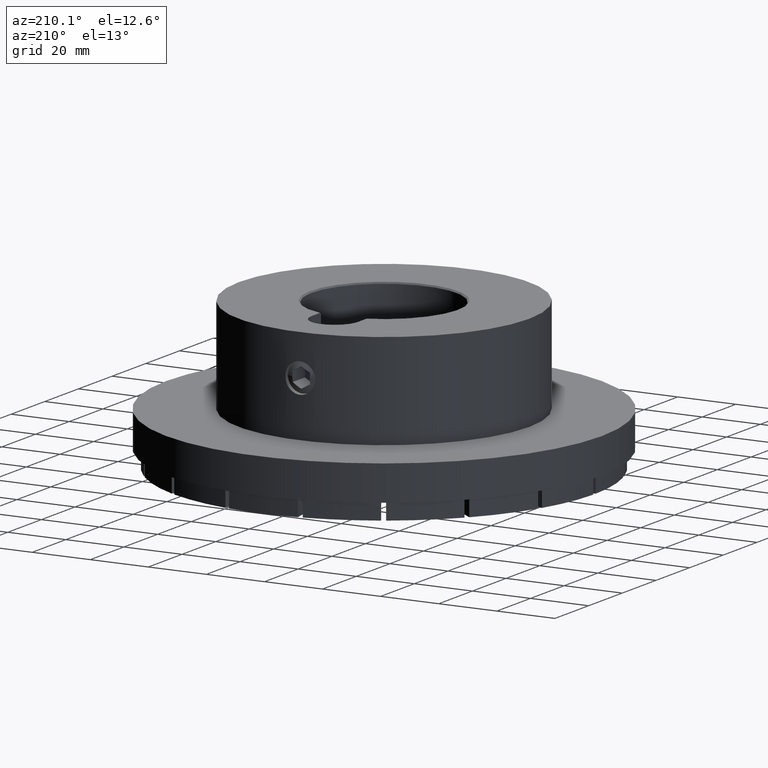
[diagram: clean part render]
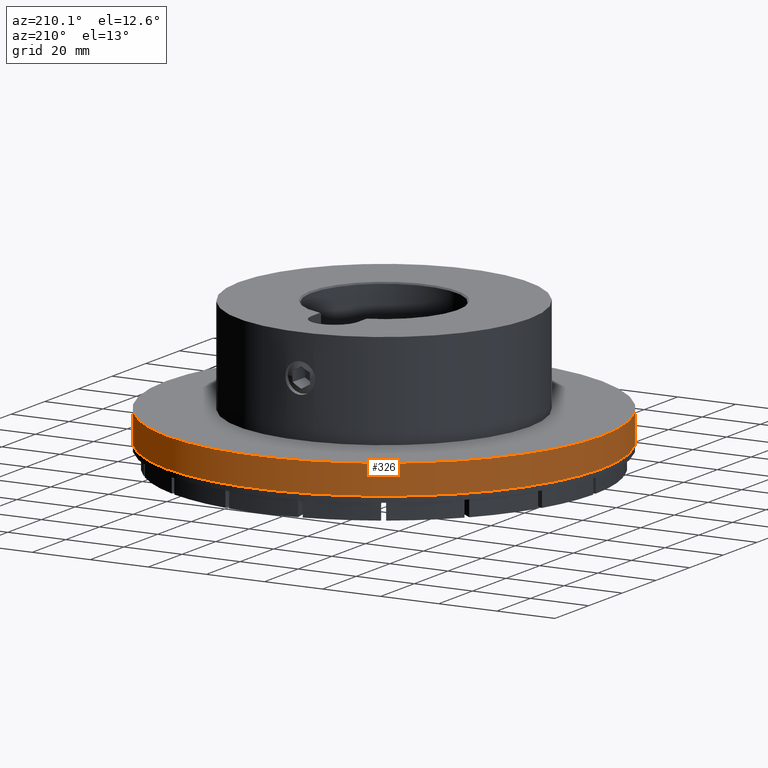
[diagram: same view with one face highlighted and labeled with its STEP entity id]
A machine part, auxiliary view. The second image highlights one B-rep face of the part: STEP entity #326.
In plain terms, the highlighted cylindrical surface (bore or boss wall) has radius 75 mm, axis along (0, -0, 1).
Its self-contained STEP definition (entity closure, byte-faithful):
#326 = ADVANCED_FACE( '', ( #513, #514 ), #515, .T. );
#513 = FACE_OUTER_BOUND( '', #785, .T. );
#514 = FACE_OUTER_BOUND( '', #786, .T. );
#515 = CYLINDRICAL_SURFACE( '', #787, 75.0000000000000 );
#785 = EDGE_LOOP( '', ( #1104 ) );
#786 = EDGE_LOOP( '', ( #1105 ) );
#787 = AXIS2_PLACEMENT_3D( '', #1106, #1107, #1108 );
#1104 = ORIENTED_EDGE( '', *, *, #1928, .T. );
#1105 = ORIENTED_EDGE( '', *, *, #1929, .F. );
#1106 = CARTESIAN_POINT( '', ( 0.000000000000000, 0.000000000000000, 51.0000000000000 ) );
#1107 = DIRECTION( '', ( 0.000000000000000, -0.000000000000000, 1.00000000000000 ) );
#1108 = DIRECTION( '', ( -1.00000000000000, 0.000000000000000, 0.000000000000000 ) );
#1928 = EDGE_CURVE( '', #2225, #2225, #2226, .T. );
#1929 = EDGE_CURVE( '', #2227, #2227, #2228, .T. );
#2225 = VERTEX_POINT( '', #2856 );
#2226 = CIRCLE( '', #2857, 75.0000000000000 );
#2227 = VERTEX_POINT( '', #2858 );
#2228 = CIRCLE( '', #2859, 75.0000000000000 );
#2856 = CARTESIAN_POINT( '', ( 75.0000000000000, 0.000000000000000, 8.00000000000000 ) );
#2857 = AXIS2_PLACEMENT_3D( '', #3535, #3536, #3537 );
#2858 = CARTESIAN_POINT( '', ( 75.0000000000000, 0.000000000000000, 18.0000000000000 ) );
#2859 = AXIS2_PLACEMENT_3D( '', #3538, #3539, #3540 );
#3535 = CARTESIAN_POINT( '', ( 1.38777878078145E-014, 0.000000000000000, 8.00000000000000 ) );
#3536 = DIRECTION( '', ( 0.000000000000000, 0.000000000000000, 1.00000000000000 ) );
#3537 = DIRECTION( '', ( 1.00000000000000, 0.000000000000000, 0.000000000000000 ) );
#3538 = CARTESIAN_POINT( '', ( 0.000000000000000, 0.000000000000000, 18.0000000000000 ) );
#3539 = DIRECTION( '', ( 0.000000000000000, 0.000000000000000, 1.00000000000000 ) );
#3540 = DIRECTION( '', ( 1.00000000000000, 0.000000000000000, 0.000000000000000 ) );